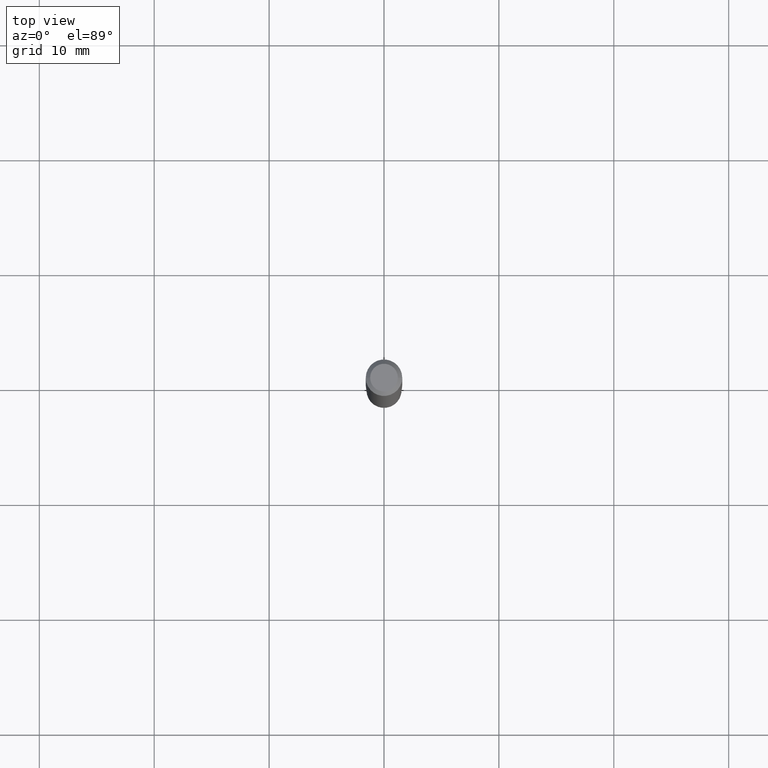
[diagram: clean part render]
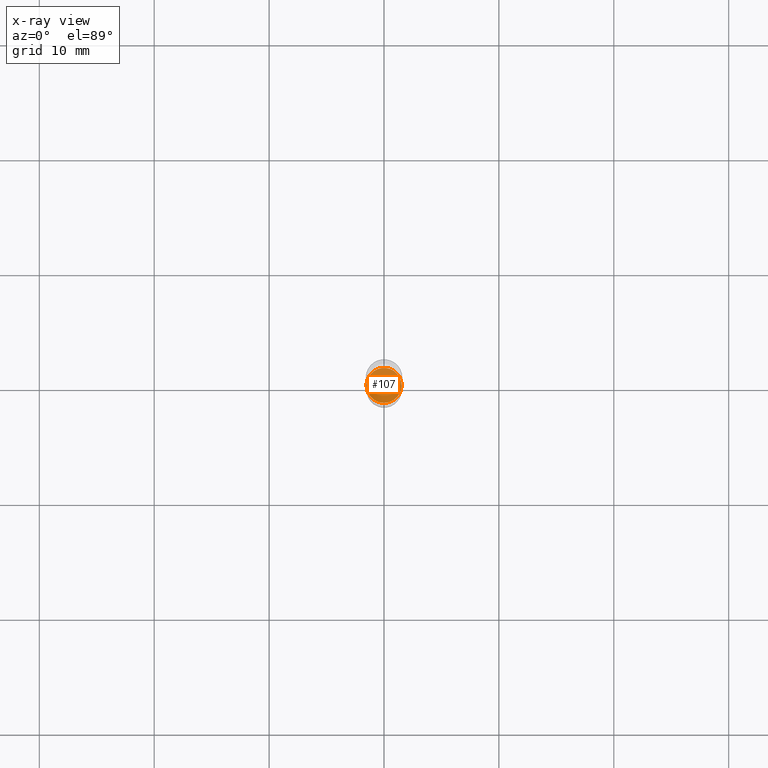
[diagram: x-ray — body ghosted, one internal face saturated and labeled with its STEP entity id]
A machine part, top view, then the same camera in x-ray: the body is ghosted and one INTERNAL B-rep face — a face not visible from any outside direction — is saturated and labeled: STEP entity #107.
In plain terms, the highlighted planar face has unit normal (0, -0, -1).
Its self-contained STEP definition (entity closure, byte-faithful):
#19 = CARTESIAN_POINT ( 'NONE',  ( 0.05999999999999999778, -5.795859022479621407E-15, -1.540000000000000258 ) ) ;
#34 = FACE_OUTER_BOUND ( 'NONE', #148, .T. ) ;
#47 = EDGE_CURVE ( 'NONE', #122, #227, #427, .T. ) ;
#65 = CARTESIAN_POINT ( 'NONE',  ( -0.05999999999999999778, -6.626466663007093973E-15, -1.540000000000000258 ) ) ;
#99 = DIRECTION ( 'NONE',  ( -1.000000000000000000, 6.982962677686265922E-15, -4.876176775795935793E-29 ) ) ;
#106 = CIRCLE ( 'NONE', #416, 0.05999999999999999778 ) ;
#107 = ADVANCED_FACE ( 'NONE', ( #34 ), #391, .F. ) ;
#122 = VERTEX_POINT ( 'NONE', #65 ) ;
#130 = CARTESIAN_POINT ( 'NONE',  ( 3.766021961525111077E-29, -5.376881261818445562E-15, -1.540000000000000258 ) ) ;
#143 = AXIS2_PLACEMENT_3D ( 'NONE', #429, #205, #423 ) ;
#148 = EDGE_LOOP ( 'NONE', ( #192, #265 ) ) ;
#184 = EDGE_CURVE ( 'NONE', #227, #122, #106, .T. ) ;
#192 = ORIENTED_EDGE ( 'NONE', *, *, #184, .T. ) ;
#205 = DIRECTION ( 'NONE',  ( -2.445468806185136597E-29, 3.491481338843145583E-15, 1.000000000000000000 ) ) ;
#227 = VERTEX_POINT ( 'NONE', #19 ) ;
#265 = ORIENTED_EDGE ( 'NONE', *, *, #47, .T. ) ;
#308 = DIRECTION ( 'NONE',  ( -2.445468806185136597E-29, 3.491481338843145583E-15, 1.000000000000000000 ) ) ;
#319 = DIRECTION ( 'NONE',  ( 2.438088387897960049E-29, -3.491481338843145188E-15, -1.000000000000000000 ) ) ;
#384 = AXIS2_PLACEMENT_3D ( 'NONE', #454, #319, #99 ) ;
#391 = PLANE ( 'NONE',  #384 ) ;
#416 = AXIS2_PLACEMENT_3D ( 'NONE', #130, #308, #445 ) ;
#423 = DIRECTION ( 'NONE',  ( 1.000000000000000000, -6.982962677686268288E-15, 0.000000000000000000 ) ) ;
#427 = CIRCLE ( 'NONE', #143, 0.05999999999999999778 ) ;
#429 = CARTESIAN_POINT ( 'NONE',  ( 3.766021961525111077E-29, -5.376881261818445562E-15, -1.540000000000000258 ) ) ;
#445 = DIRECTION ( 'NONE',  ( 1.000000000000000000, -6.982962677686268288E-15, 0.000000000000000000 ) ) ;
#454 = CARTESIAN_POINT ( 'NONE',  ( 4.189777606612136116E-16, 0.05999999999999462014, -1.540000000000000480 ) ) ;